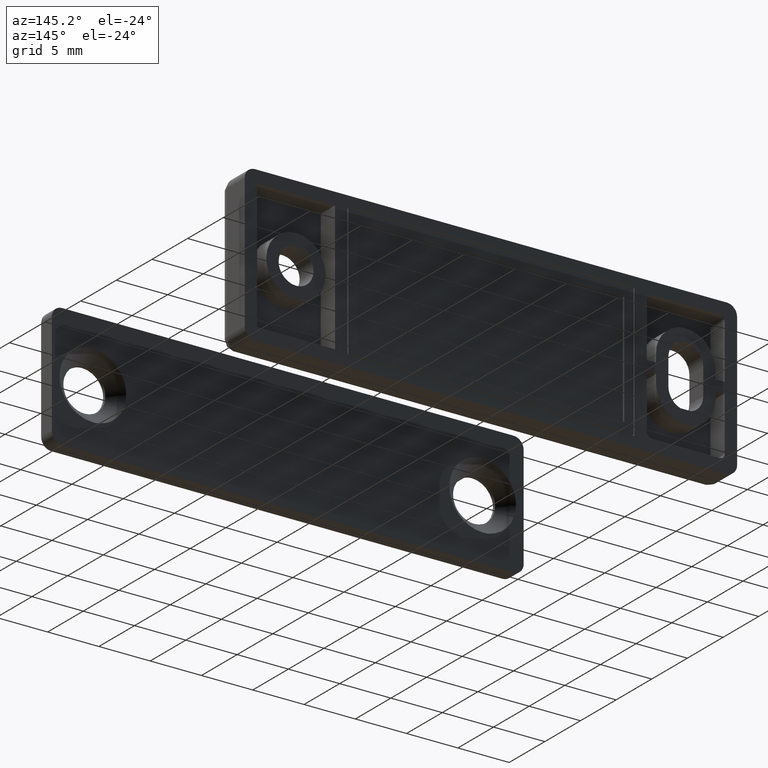
[diagram: clean part render]
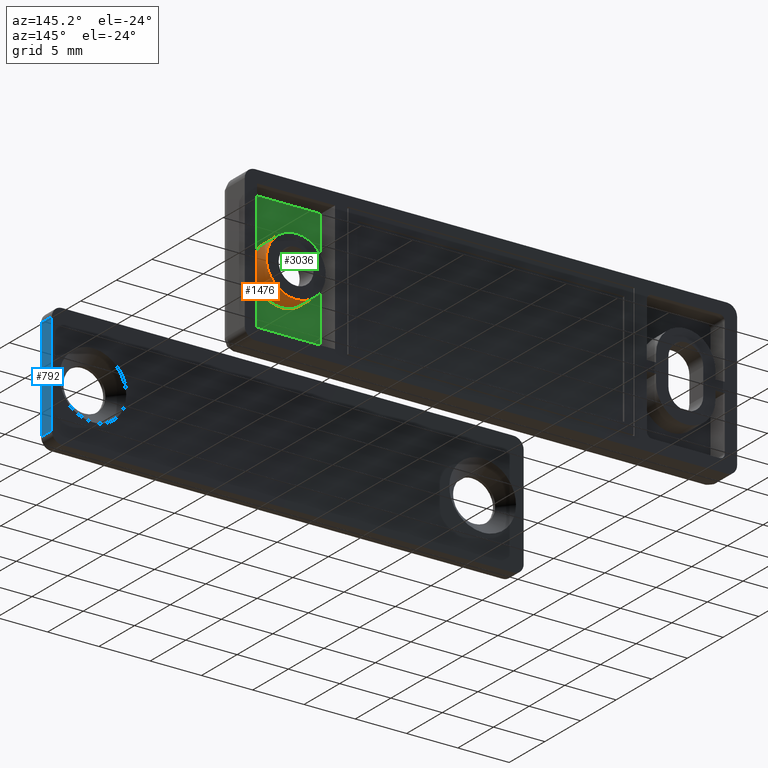
[diagram: same view with three faces highlighted in distinct colors, each labeled with its STEP entity id]
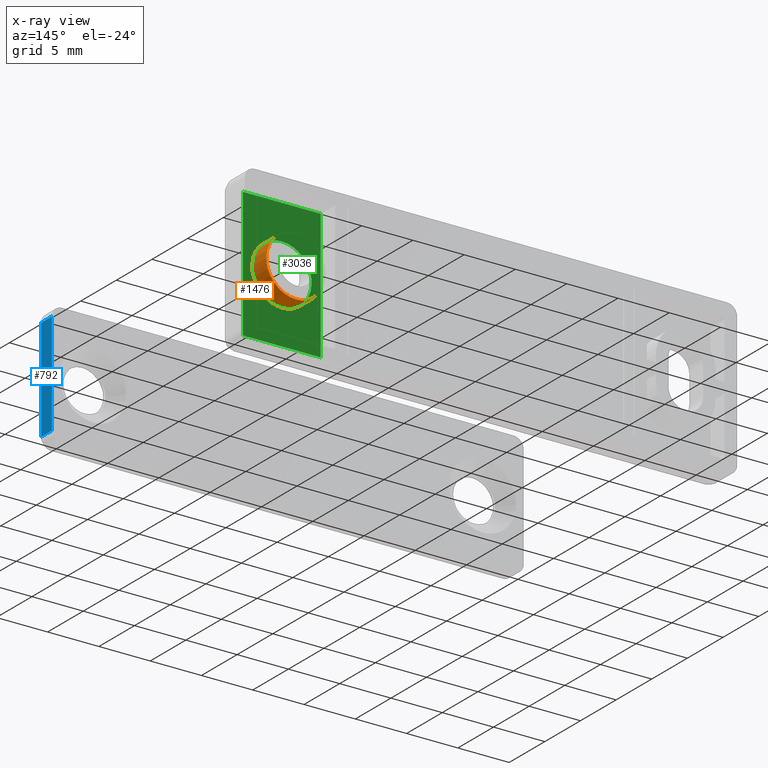
[diagram: x-ray of the same camera — body ghosted, the three highlighted faces saturated]
A machine part, auxiliary view with three faces highlighted in distinct colors.
The next image is the same camera in x-ray (body ghosted, the three faces saturated) — at least one of them is partly hidden behind the body in this view.
Their STEP definitions:

[orange] entity #1476 — the highlighted face is a freeform B-spline surface patch.
#1315=CARTESIAN_POINT('',(21.138104334576649,-1.040834E-017,1.959211715806192));
#1316=VERTEX_POINT('',#1315);
#1329=CARTESIAN_POINT('',(21.899999999999959,0.0,0.000000479678953));
#1330=VERTEX_POINT('',#1329);
#1331=CARTESIAN_POINT('',(21.899999999999959,0.0,0.000000479678953));
#1332=CARTESIAN_POINT('',(21.900031653607790,-1.071374E-018,0.201670264641031));
#1333=CARTESIAN_POINT('',(21.863614609303340,-2.916432E-018,0.548974268985055));
#1334=CARTESIAN_POINT('',(21.706252568117559,-5.781453E-018,1.088270827019665));
#1335=CARTESIAN_POINT('',(21.471710393867379,-8.238035E-018,1.550684770604533));
#1336=CARTESIAN_POINT('',(21.244073715253482,-9.794000E-018,1.843571534269409));
#1337=CARTESIAN_POINT('',(21.138104334576649,-1.040834E-017,1.959211715806192));
#1338=B_SPLINE_CURVE_WITH_KNOTS('',3,(#1331,#1332,#1333,#1334,#1335,#1336,#1337),.UNSPECIFIED.,.F.,.U.,(4,1,1,1,4),(0.000000013483215,0.605006000472933,1.041962441385652,1.680570969655084,2.151129951847247),.UNSPECIFIED.);
#1339=EDGE_CURVE('',#1330,#1316,#1338,.T.);
#1341=CARTESIAN_POINT('',(19.0,0.0,-2.900000000000020));
#1342=VERTEX_POINT('',#1341);
#1343=CARTESIAN_POINT('',(19.0,0.0,-2.900000000000020));
#1344=CARTESIAN_POINT('',(19.189802984163698,0.0,-2.900016637328509));
#1345=CARTESIAN_POINT('',(19.616869235727140,0.0,-2.857959611872256));
#1346=CARTESIAN_POINT('',(20.207024167178520,0.0,-2.663022192536440));
#1347=CARTESIAN_POINT('',(20.728440487259899,0.0,-2.350437963009235));
#1348=CARTESIAN_POINT('',(21.145604782986599,0.0,-1.976975702847006));
#1349=CARTESIAN_POINT('',(21.520977784645378,0.0,-1.483713164162840));
#1350=CARTESIAN_POINT('',(21.820760955146991,0.0,-0.818473576327956));
#1351=CARTESIAN_POINT('',(21.900108577421911,0.0,-0.284716769613572));
#1352=CARTESIAN_POINT('',(21.899999999999959,0.0,0.000000479678953));
#1353=B_SPLINE_CURVE_WITH_KNOTS('',3,(#1343,#1344,#1345,#1346,#1347,#1348,#1349,#1350,#1351,#1352),.UNSPECIFIED.,.F.,.U.,(4,1,1,1,1,1,1,4),(0.000000059197435,0.569414621102905,1.281191742138753,1.850619818795760,2.384427133491737,2.953847129540847,3.701218129275519,4.555338200697432),.UNSPECIFIED.);
#1354=EDGE_CURVE('',#1342,#1330,#1353,.T.);
#1356=CARTESIAN_POINT('',(16.861895665423361,-1.283695E-016,-1.959211715806230));
#1357=VERTEX_POINT('',#1356);
#1358=CARTESIAN_POINT('',(16.861895665423361,-1.283695E-016,-1.959211715806230));
#1359=CARTESIAN_POINT('',(17.014132668777648,-1.192294E-016,-2.125429900750324));
#1360=CARTESIAN_POINT('',(17.281325025624721,-1.031874E-016,-2.356107184420776));
#1361=CARTESIAN_POINT('',(17.724932793192401,-7.655370E-017,-2.616671400827216));
#1362=CARTESIAN_POINT('',(18.261279090364422,-4.435203E-017,-2.832265028331202));
#1363=CARTESIAN_POINT('',(18.711976617936308,-1.729262E-017,-2.900143042240505));
#1364=CARTESIAN_POINT('',(19.0,0.0,-2.900000000000020));
#1365=B_SPLINE_CURVE_WITH_KNOTS('',3,(#1358,#1359,#1360,#1361,#1362,#1363,#1364),.UNSPECIFIED.,.F.,.U.,(4,1,1,1,4),(0.000000017840253,0.676183788977884,1.051844688944971,1.540190304122636,2.404207857216116),.UNSPECIFIED.);
#1366=EDGE_CURVE('',#1357,#1342,#1365,.T.);
#1403=CARTESIAN_POINT('',(21.138104276749360,-2.050000000000000,1.959211602085394));
#1404=CARTESIAN_POINT('',(23.097315878834774,-2.050000000000001,-0.178892674663966));
#1405=CARTESIAN_POINT('',(20.959211602085411,-2.050000000000000,-2.138104276749380));
#1406=CARTESIAN_POINT('',(18.821107325336058,-2.050000000000001,-4.097315878834793));
#1407=CARTESIAN_POINT('',(16.861895723250640,-2.050000000000000,-1.959211602085434));
#1408=CARTESIAN_POINT('',(21.138104276749360,0.051250000000000,1.959211602085394));
#1409=CARTESIAN_POINT('',(23.097315878834774,0.051250000000000,-0.178892674663966));
#1410=CARTESIAN_POINT('',(20.959211602085411,0.051250000000000,-2.138104276749380));
#1411=CARTESIAN_POINT('',(18.821107325336058,0.051250000000000,-4.097315878834793));
#1412=CARTESIAN_POINT('',(16.861895723250640,0.051250000000000,-1.959211602085434));
#1420=(BOUNDED_SURFACE()B_SPLINE_SURFACE(2,1,((#1403,#1408),(#1404,#1409),(#1405,#1410),(#1406,#1411),(#1407,#1412)),.UNSPECIFIED.,.F.,.F.,.U.)B_SPLINE_SURFACE_WITH_KNOTS((3,2,3),(2,2),(0.0,4.804877323527902,9.609754647055803),(0.0,2.101250000000000),.UNSPECIFIED.)GEOMETRIC_REPRESENTATION_ITEM()RATIONAL_B_SPLINE_SURFACE(((1.0,1.0),(0.707106781186548,0.707106781186548),(1.0,1.0),(0.707106781186548,0.707106781186548),(1.0,1.0)))REPRESENTATION_ITEM('')SURFACE());
#1421=CARTESIAN_POINT('',(21.899999999999959,-2.0,0.000000479678953));
#1422=VERTEX_POINT('',#1421);
#1423=CARTESIAN_POINT('',(21.138104334203831,-2.000000000001984,1.959211716213046));
#1424=VERTEX_POINT('',#1423);
#1425=CARTESIAN_POINT('',(21.899999999999959,-2.0,0.000000479678953));
#1426=CARTESIAN_POINT('',(21.900056399648289,-2.000000000000239,0.235285532495504));
#1427=CARTESIAN_POINT('',(21.851999891438840,-2.000000000000637,0.627382013258855));
#1428=CARTESIAN_POINT('',(21.622638504339161,-2.000000000001326,1.309259123755111));
#1429=CARTESIAN_POINT('',(21.357816063707830,-2.000000000001743,1.719798792456736));
#1430=CARTESIAN_POINT('',(21.138104334203831,-2.000000000001984,1.959211716213046));
#1431=B_SPLINE_CURVE_WITH_KNOTS('',3,(#1425,#1426,#1427,#1428,#1429,#1430),.UNSPECIFIED.,.F.,.U.,(4,1,1,4),(0.000000013483604,0.705841718830416,1.176398399487345,2.151129952399097),.UNSPECIFIED.);
#1432=EDGE_CURVE('',#1422,#1424,#1431,.T.);
#1433=ORIENTED_EDGE('',*,*,#1432,.F.);
#1434=CARTESIAN_POINT('',(19.0,-2.0,-2.900000000000020));
#1435=VERTEX_POINT('',#1434);
#1436=CARTESIAN_POINT('',(19.0,-2.0,-2.900000000000020));
#1437=CARTESIAN_POINT('',(19.320316925909118,-2.000000000000001,-2.900190525609249));
#1438=CARTESIAN_POINT('',(19.865880853572438,-1.999999999999996,-2.808651842117754));
#1439=CARTESIAN_POINT('',(20.522548895221810,-2.000000000000008,-2.493049491282917));
#1440=CARTESIAN_POINT('',(20.984924738535199,-1.999999999999989,-2.136731723249949));
#1441=CARTESIAN_POINT('',(21.334540182249601,-2.000000000000013,-1.746184859565088));
#1442=CARTESIAN_POINT('',(21.634393507281100,-1.999999999999985,-1.259637207178211));
#1443=CARTESIAN_POINT('',(21.847186824412731,-2.000000000000008,-0.676163243035202));
#1444=CARTESIAN_POINT('',(21.900048191063799,-1.999999999999973,-0.225394435775720));
#1445=CARTESIAN_POINT('',(21.899999999999959,-2.0,0.000000479678953));
#1446=B_SPLINE_CURVE_WITH_KNOTS('',3,(#1436,#1437,#1438,#1439,#1440,#1441,#1442,#1443,#1444,#1445),.UNSPECIFIED.,.F.,.U.,(4,1,1,1,1,1,1,4),(0.000000059197435,0.960888253214513,1.637084843255724,2.170911724021702,2.704718971055294,3.202970846970227,3.879160200533618,4.555338200697432),.UNSPECIFIED.);
#1447=EDGE_CURVE('',#1435,#1422,#1446,.T.);
#1448=ORIENTED_EDGE('',*,*,#1447,.F.);
#1449=CARTESIAN_POINT('',(16.861895665796169,-2.000000000001984,-1.959211716213083));
#1450=VERTEX_POINT('',#1449);
#1451=CARTESIAN_POINT('',(16.861895665796169,-2.000000000001984,-1.959211716213083));
#1452=CARTESIAN_POINT('',(17.022587116751851,-2.000000000001831,-2.134668424391845));
#1453=CARTESIAN_POINT('',(17.358689742550201,-2.000000000001535,-2.421077525083862));
#1454=CARTESIAN_POINT('',(17.894885068031300,-2.000000000001017,-2.699741175914607));
#1455=CARTESIAN_POINT('',(18.436526670170849,-2.000000000000541,-2.862211924476897));
#1456=CARTESIAN_POINT('',(18.799648387807050,-2.000000000000158,-2.900031338624765));
#1457=CARTESIAN_POINT('',(19.0,-2.0,-2.900000000000020));
#1458=B_SPLINE_CURVE_WITH_KNOTS('',3,(#1451,#1452,#1453,#1454,#1455,#1456,#1457),.UNSPECIFIED.,.F.,.U.,(4,1,1,1,4),(0.000000017839768,0.713751232473517,1.314795785669160,1.803155896962211,2.404207856664271),.UNSPECIFIED.);
#1459=EDGE_CURVE('',#1450,#1435,#1458,.T.);
#1460=ORIENTED_EDGE('',*,*,#1459,.F.);
#1461=CARTESIAN_POINT('',(16.861895665796169,-2.000000000001984,-1.959211716213083));
#1462=CARTESIAN_POINT('',(16.861895665423361,-1.283695E-016,-1.959211715806230));
#1463=QUASI_UNIFORM_CURVE('',1,(#1461,#1462),.UNSPECIFIED.,.F.,.U.);
#1464=EDGE_CURVE('',#1450,#1357,#1463,.T.);
#1465=ORIENTED_EDGE('',*,*,#1464,.T.);
#1466=ORIENTED_EDGE('',*,*,#1366,.T.);
#1467=ORIENTED_EDGE('',*,*,#1354,.T.);
#1468=ORIENTED_EDGE('',*,*,#1339,.T.);
#1469=CARTESIAN_POINT('',(21.138104334203831,-2.000000000001984,1.959211716213046));
#1470=CARTESIAN_POINT('',(21.138104334576649,-1.040834E-017,1.959211715806192));
#1471=QUASI_UNIFORM_CURVE('',1,(#1469,#1470),.UNSPECIFIED.,.F.,.U.);
#1472=EDGE_CURVE('',#1424,#1316,#1471,.T.);
#1473=ORIENTED_EDGE('',*,*,#1472,.F.);
#1474=EDGE_LOOP('',(#1433,#1448,#1460,#1465,#1466,#1467,#1468,#1473));
#1475=FACE_OUTER_BOUND('',#1474,.T.);
#1476=ADVANCED_FACE('',(#1475),#1420,.T.);

[blue] entity #792 — the highlighted face is a freeform B-spline surface patch.
#757=CARTESIAN_POINT('',(23.0,-30.074924997092250,5.499499980618140));
#758=CARTESIAN_POINT('',(23.0,-30.074924997092250,-5.499500248838881));
#759=CARTESIAN_POINT('',(23.0,-28.425074962673701,5.499499980618140));
#760=CARTESIAN_POINT('',(23.0,-28.425074962673701,-5.499500248838881));
#761=B_SPLINE_SURFACE_WITH_KNOTS('',1,1,((#757,#759),(#758,#760)),.UNSPECIFIED.,.F.,.F.,.U.,(2,2),(2,2),(0.0,10.999000229457019),(0.041708334948495,0.958291687403247),.UNSPECIFIED.);
#762=CARTESIAN_POINT('',(23.0,-29.999999999999549,-4.999999999999920));
#763=VERTEX_POINT('',#762);
#764=CARTESIAN_POINT('',(23.0,-29.999999999999549,5.000000000000080));
#765=VERTEX_POINT('',#764);
#766=CARTESIAN_POINT('',(23.0,-29.999999999999549,-4.999999999999920));
#767=CARTESIAN_POINT('',(23.0,-29.999999999999549,5.000000000000080));
#768=QUASI_UNIFORM_CURVE('',1,(#766,#767),.UNSPECIFIED.,.F.,.U.);
#769=EDGE_CURVE('',#763,#765,#768,.T.);
#770=ORIENTED_EDGE('',*,*,#769,.F.);
#771=CARTESIAN_POINT('',(23.0,-28.499999999999549,-4.999999999999920));
#772=VERTEX_POINT('',#771);
#773=CARTESIAN_POINT('',(23.0,-29.999999999999549,-4.999999999999920));
#774=CARTESIAN_POINT('',(23.0,-28.499999999999549,-4.999999999999920));
#775=QUASI_UNIFORM_CURVE('',1,(#773,#774),.UNSPECIFIED.,.F.,.U.);
#776=EDGE_CURVE('',#763,#772,#775,.T.);
#777=ORIENTED_EDGE('',*,*,#776,.T.);
#778=CARTESIAN_POINT('',(23.0,-28.499999999999549,5.000000000000080));
#779=VERTEX_POINT('',#778);
#780=CARTESIAN_POINT('',(23.0,-28.499999999999549,-4.999999999999920));
#781=CARTESIAN_POINT('',(23.0,-28.499999999999549,5.000000000000080));
#782=QUASI_UNIFORM_CURVE('',1,(#780,#781),.UNSPECIFIED.,.F.,.U.);
#783=EDGE_CURVE('',#772,#779,#782,.T.);
#784=ORIENTED_EDGE('',*,*,#783,.T.);
#785=CARTESIAN_POINT('',(23.0,-28.499999999999549,5.000000000000080));
#786=CARTESIAN_POINT('',(23.0,-29.999999999999549,5.000000000000080));
#787=QUASI_UNIFORM_CURVE('',1,(#785,#786),.UNSPECIFIED.,.F.,.U.);
#788=EDGE_CURVE('',#779,#765,#787,.T.);
#789=ORIENTED_EDGE('',*,*,#788,.T.);
#790=EDGE_LOOP('',(#770,#777,#784,#789));
#791=FACE_OUTER_BOUND('',#790,.T.);
#792=ADVANCED_FACE('',(#791),#761,.T.);

[green] entity #3036 — the highlighted face is a freeform B-spline surface patch.
#1421=CARTESIAN_POINT('',(21.899999999999959,-2.0,0.000000479678953));
#1422=VERTEX_POINT('',#1421);
#1423=CARTESIAN_POINT('',(21.138104334203831,-2.000000000001984,1.959211716213046));
#1424=VERTEX_POINT('',#1423);
#1425=CARTESIAN_POINT('',(21.899999999999959,-2.0,0.000000479678953));
#1426=CARTESIAN_POINT('',(21.900056399648289,-2.000000000000239,0.235285532495504));
#1427=CARTESIAN_POINT('',(21.851999891438840,-2.000000000000637,0.627382013258855));
#1428=CARTESIAN_POINT('',(21.622638504339161,-2.000000000001326,1.309259123755111));
#1429=CARTESIAN_POINT('',(21.357816063707830,-2.000000000001743,1.719798792456736));
#1430=CARTESIAN_POINT('',(21.138104334203831,-2.000000000001984,1.959211716213046));
#1431=B_SPLINE_CURVE_WITH_KNOTS('',3,(#1425,#1426,#1427,#1428,#1429,#1430),.UNSPECIFIED.,.F.,.U.,(4,1,1,4),(0.000000013483604,0.705841718830416,1.176398399487345,2.151129952399097),.UNSPECIFIED.);
#1432=EDGE_CURVE('',#1422,#1424,#1431,.T.);
#1434=CARTESIAN_POINT('',(19.0,-2.0,-2.900000000000020));
#1435=VERTEX_POINT('',#1434);
#1436=CARTESIAN_POINT('',(19.0,-2.0,-2.900000000000020));
#1437=CARTESIAN_POINT('',(19.320316925909118,-2.000000000000001,-2.900190525609249));
#1438=CARTESIAN_POINT('',(19.865880853572438,-1.999999999999996,-2.808651842117754));
#1439=CARTESIAN_POINT('',(20.522548895221810,-2.000000000000008,-2.493049491282917));
#1440=CARTESIAN_POINT('',(20.984924738535199,-1.999999999999989,-2.136731723249949));
#1441=CARTESIAN_POINT('',(21.334540182249601,-2.000000000000013,-1.746184859565088));
#1442=CARTESIAN_POINT('',(21.634393507281100,-1.999999999999985,-1.259637207178211));
#1443=CARTESIAN_POINT('',(21.847186824412731,-2.000000000000008,-0.676163243035202));
#1444=CARTESIAN_POINT('',(21.900048191063799,-1.999999999999973,-0.225394435775720));
#1445=CARTESIAN_POINT('',(21.899999999999959,-2.0,0.000000479678953));
#1446=B_SPLINE_CURVE_WITH_KNOTS('',3,(#1436,#1437,#1438,#1439,#1440,#1441,#1442,#1443,#1444,#1445),.UNSPECIFIED.,.F.,.U.,(4,1,1,1,1,1,1,4),(0.000000059197435,0.960888253214513,1.637084843255724,2.170911724021702,2.704718971055294,3.202970846970227,3.879160200533618,4.555338200697432),.UNSPECIFIED.);
#1447=EDGE_CURVE('',#1435,#1422,#1446,.T.);
#1449=CARTESIAN_POINT('',(16.861895665796169,-2.000000000001984,-1.959211716213083));
#1450=VERTEX_POINT('',#1449);
#1451=CARTESIAN_POINT('',(16.861895665796169,-2.000000000001984,-1.959211716213083));
#1452=CARTESIAN_POINT('',(17.022587116751851,-2.000000000001831,-2.134668424391845));
#1453=CARTESIAN_POINT('',(17.358689742550201,-2.000000000001535,-2.421077525083862));
#1454=CARTESIAN_POINT('',(17.894885068031300,-2.000000000001017,-2.699741175914607));
#1455=CARTESIAN_POINT('',(18.436526670170849,-2.000000000000541,-2.862211924476897));
#1456=CARTESIAN_POINT('',(18.799648387807050,-2.000000000000158,-2.900031338624765));
#1457=CARTESIAN_POINT('',(19.0,-2.0,-2.900000000000020));
#1458=B_SPLINE_CURVE_WITH_KNOTS('',3,(#1451,#1452,#1453,#1454,#1455,#1456,#1457),.UNSPECIFIED.,.F.,.U.,(4,1,1,1,4),(0.000000017839768,0.713751232473517,1.314795785669160,1.803155896962211,2.404207856664271),.UNSPECIFIED.);
#1459=EDGE_CURVE('',#1450,#1435,#1458,.T.);
#1495=CARTESIAN_POINT('',(19.0,-2.0,2.899999999999980));
#1496=VERTEX_POINT('',#1495);
#1497=CARTESIAN_POINT('',(21.138104334203831,-2.000000000001984,1.959211716213046));
#1498=CARTESIAN_POINT('',(20.943606933547361,-2.000000000001807,2.171636338417179));
#1499=CARTESIAN_POINT('',(20.569415964948981,-2.000000000001453,2.474039403833915));
#1500=CARTESIAN_POINT('',(20.021460035758569,-2.000000000000951,2.727887907616497));
#1501=CARTESIAN_POINT('',(19.525906696605912,-2.000000000000487,2.866115744946743));
#1502=CARTESIAN_POINT('',(19.200352463783720,-2.000000000000186,2.900034230128366));
#1503=CARTESIAN_POINT('',(19.0,-2.0,2.899999999999980));
#1504=B_SPLINE_CURVE_WITH_KNOTS('',3,(#1497,#1498,#1499,#1500,#1501,#1502,#1503),.UNSPECIFIED.,.F.,.U.,(4,1,1,1,4),(0.000000017840070,0.864017570743207,1.427491780241426,1.803155896962194,2.404207856664272),.UNSPECIFIED.);
#1505=EDGE_CURVE('',#1424,#1496,#1504,.T.);
#1512=CARTESIAN_POINT('',(16.100000000000041,-2.0,-0.000000479678975));
#1513=VERTEX_POINT('',#1512);
#1514=CARTESIAN_POINT('',(16.100000000000041,-2.0,-0.000000479678975));
#1515=CARTESIAN_POINT('',(16.099993332656251,-2.000000000000160,-0.156852392981218));
#1516=CARTESIAN_POINT('',(16.128230531722298,-2.000000000000507,-0.504172179393424));
#1517=CARTESIAN_POINT('',(16.261748698903389,-2.000000000001029,-1.004540360079406));
#1518=CARTESIAN_POINT('',(16.504426610608022,-2.000000000001511,-1.511786333954551));
#1519=CARTESIAN_POINT('',(16.725629314401878,-2.000000000001848,-1.810545371342530));
#1520=CARTESIAN_POINT('',(16.861895665796169,-2.000000000001984,-1.959211716213083));
#1521=B_SPLINE_CURVE_WITH_KNOTS('',3,(#1514,#1515,#1516,#1517,#1518,#1519,#1520),.UNSPECIFIED.,.F.,.U.,(4,1,1,1,4),(0.000000013484134,0.470558995790917,1.041962441653466,1.546123965248368,2.151129952399098),.UNSPECIFIED.);
#1522=EDGE_CURVE('',#1513,#1450,#1521,.T.);
#1524=CARTESIAN_POINT('',(19.0,-2.0,2.899999999999980));
#1525=CARTESIAN_POINT('',(18.715282036646862,-1.999999999999999,2.900115870163449));
#1526=CARTESIAN_POINT('',(18.169658198570080,-2.000000000000004,2.818996023107411));
#1527=CARTESIAN_POINT('',(17.505737125219412,-1.999999999999999,2.514915887893755));
#1528=CARTESIAN_POINT('',(17.015076343770470,-2.0,2.136723494731594));
#1529=CARTESIAN_POINT('',(16.681361330783659,-2.000000000000002,1.763934783647012));
#1530=CARTESIAN_POINT('',(16.375837126094520,-1.999999999999992,1.281582827259498));
#1531=CARTESIAN_POINT('',(16.155556535894330,-2.000000000000043,0.699902513419261));
#1532=CARTESIAN_POINT('',(16.099966765216742,-1.999999999999941,0.225390723985980));
#1533=CARTESIAN_POINT('',(16.100000000000041,-2.0,-0.000000479678975));
#1534=B_SPLINE_CURVE_WITH_KNOTS('',3,(#1524,#1525,#1526,#1527,#1528,#1529,#1530,#1531,#1532,#1533),.UNSPECIFIED.,.F.,.U.,(4,1,1,1,1,1,1,4),(0.000000059196372,0.854120512762165,1.637084843255972,2.170911724022145,2.704718971055597,3.131789200617874,3.879160200533660,4.555338200697493),.UNSPECIFIED.);
#1535=EDGE_CURVE('',#1496,#1513,#1534,.T.);
#2993=CARTESIAN_POINT('',(14.820380014730270,-2.0,6.929369975578755));
#2994=CARTESIAN_POINT('',(23.179620189117610,-2.0,6.929369975578755));
#2995=CARTESIAN_POINT('',(14.820380014730270,-2.0,-6.929370313537091));
#2996=CARTESIAN_POINT('',(23.179620189117610,-2.0,-6.929370313537091));
#2997=B_SPLINE_SURFACE_WITH_KNOTS('',1,1,((#2993,#2995),(#2994,#2996)),.UNSPECIFIED.,.F.,.F.,.U.,(2,2),(2,2),(0.0,8.359240174387342),(0.0,13.858740289115850),.UNSPECIFIED.);
#2998=CARTESIAN_POINT('',(22.800000000000001,-2.0,-6.300000000000000));
#2999=VERTEX_POINT('',#2998);
#3000=CARTESIAN_POINT('',(22.800000000000001,-2.0,6.300000000000000));
#3001=VERTEX_POINT('',#3000);
#3002=CARTESIAN_POINT('',(22.800000000000001,-2.0,-6.300000000000000));
#3003=CARTESIAN_POINT('',(22.800000000000001,-2.0,6.300000000000000));
#3004=QUASI_UNIFORM_CURVE('',1,(#3002,#3003),.UNSPECIFIED.,.F.,.U.);
#3005=EDGE_CURVE('',#2999,#3001,#3004,.T.);
#3006=ORIENTED_EDGE('',*,*,#3005,.F.);
#3007=CARTESIAN_POINT('',(15.199999999999999,-2.0,-6.300000000000000));
#3008=VERTEX_POINT('',#3007);
#3009=CARTESIAN_POINT('',(15.199999999999999,-2.0,-6.300000000000000));
#3010=CARTESIAN_POINT('',(22.800000000000001,-2.0,-6.300000000000000));
#3011=QUASI_UNIFORM_CURVE('',1,(#3009,#3010),.UNSPECIFIED.,.F.,.U.);
#3012=EDGE_CURVE('',#3008,#2999,#3011,.T.);
#3013=ORIENTED_EDGE('',*,*,#3012,.F.);
#3014=CARTESIAN_POINT('',(15.199999999999999,-2.0,6.300000000000000));
#3015=VERTEX_POINT('',#3014);
#3016=CARTESIAN_POINT('',(15.199999999999999,-2.0,6.300000000000000));
#3017=CARTESIAN_POINT('',(15.199999999999999,-2.0,-6.300000000000000));
#3018=QUASI_UNIFORM_CURVE('',1,(#3016,#3017),.UNSPECIFIED.,.F.,.U.);
#3019=EDGE_CURVE('',#3015,#3008,#3018,.T.);
#3020=ORIENTED_EDGE('',*,*,#3019,.F.);
#3021=CARTESIAN_POINT('',(22.800000000000001,-2.0,6.300000000000000));
#3022=CARTESIAN_POINT('',(15.199999999999999,-2.0,6.300000000000000));
#3023=QUASI_UNIFORM_CURVE('',1,(#3021,#3022),.UNSPECIFIED.,.F.,.U.);
#3024=EDGE_CURVE('',#3001,#3015,#3023,.T.);
#3025=ORIENTED_EDGE('',*,*,#3024,.F.);
#3026=EDGE_LOOP('',(#3006,#3013,#3020,#3025));
#3027=FACE_OUTER_BOUND('',#3026,.T.);
#3028=ORIENTED_EDGE('',*,*,#1535,.T.);
#3029=ORIENTED_EDGE('',*,*,#1522,.T.);
#3030=ORIENTED_EDGE('',*,*,#1459,.T.);
#3031=ORIENTED_EDGE('',*,*,#1447,.T.);
#3032=ORIENTED_EDGE('',*,*,#1432,.T.);
#3033=ORIENTED_EDGE('',*,*,#1505,.T.);
#3034=EDGE_LOOP('',(#3028,#3029,#3030,#3031,#3032,#3033));
#3035=FACE_BOUND('',#3034,.T.);
#3036=ADVANCED_FACE('',(#3027,#3035),#2997,.T.);